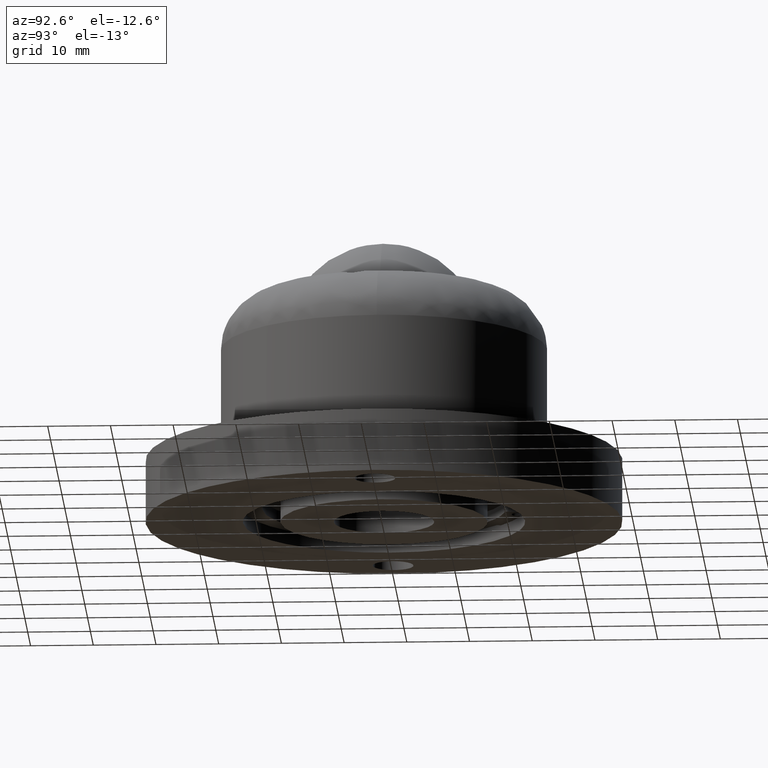
[diagram: clean part render]
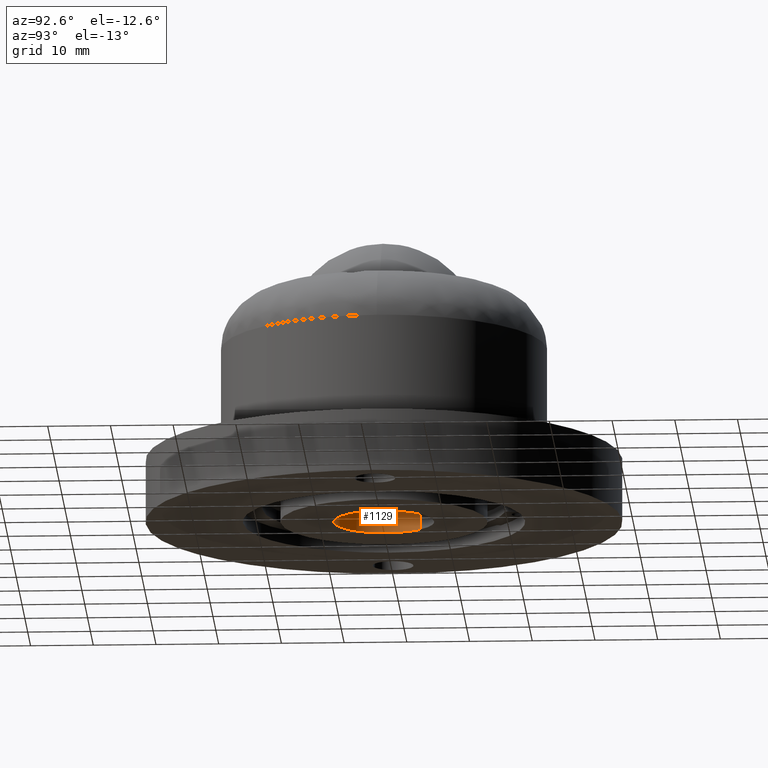
[diagram: same view with one face highlighted and labeled with its STEP entity id]
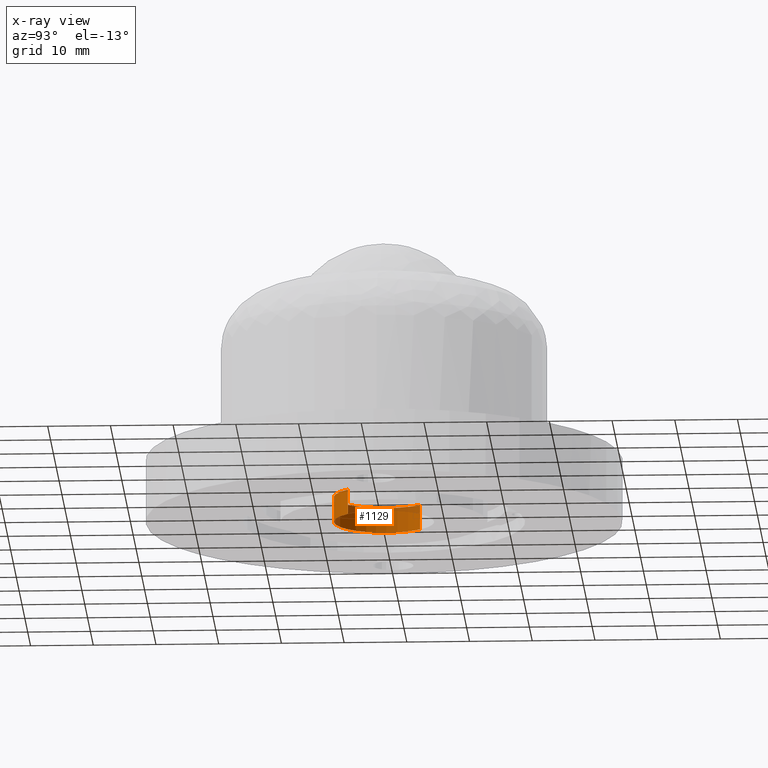
[diagram: x-ray of the same camera — body ghosted, the highlighted face saturated]
A machine part, auxiliary view. The second image highlights one B-rep face of the part: STEP entity #1129.
The next image is the same camera in x-ray: the body ghosted, the highlighted face saturated — about 16% of this face is hidden behind the body in this view.
In plain terms, the highlighted face is a freeform B-spline surface patch.
Its self-contained STEP definition (entity closure, byte-faithful):
#973=CARTESIAN_POINT('',(5.802994763858629,-5.506836414269235,3.999999999999981));
#974=VERTEX_POINT('',#973);
#985=CARTESIAN_POINT('',(-0.000001120812941,-7.999999999999921,4.0));
#986=VERTEX_POINT('',#985);
#987=CARTESIAN_POINT('',(5.802994763858629,-5.506836414269235,3.999999999999981));
#988=CARTESIAN_POINT('',(5.477137232008750,-5.850266327457732,3.999999999999989));
#989=CARTESIAN_POINT('',(4.738757038704434,-6.501481720285883,3.999999999999969));
#990=CARTESIAN_POINT('',(3.310285246142272,-7.355939909061124,4.000000000000014));
#991=CARTESIAN_POINT('',(1.690801295882577,-7.887177401995970,3.999999999999959));
#992=CARTESIAN_POINT('',(0.507231013489466,-8.000033579531856,3.999999999999995));
#993=CARTESIAN_POINT('',(-0.000001120812941,-7.999999999999921,4.0));
#994=B_SPLINE_CURVE_WITH_KNOTS('',3,(#987,#988,#989,#990,#991,#992,#993),.UNSPECIFIED.,.F.,.U.,(4,1,1,1,4),(0.000000017988243,1.420270991674795,2.942006078292971,4.970950394773506,6.492669322275529),.UNSPECIFIED.);
#995=EDGE_CURVE('',#974,#986,#994,.T.);
#997=CARTESIAN_POINT('',(-8.0,0.0,4.0));
#998=VERTEX_POINT('',#997);
#999=CARTESIAN_POINT('',(-0.000001120812941,-7.999999999999921,4.0));
#1000=CARTESIAN_POINT('',(-0.654518476255101,-8.000182052564831,3.999999999999994));
#1001=CARTESIAN_POINT('',(-1.537994714640798,-7.890939955597238,4.000000000000004));
#1002=CARTESIAN_POINT('',(-2.856919862615337,-7.499677240616364,3.999999999999998));
#1003=CARTESIAN_POINT('',(-3.845672192749862,-7.054117463501499,4.000000000000003));
#1004=CARTESIAN_POINT('',(-4.831449319856546,-6.404096796901970,3.999999999999998));
#1005=CARTESIAN_POINT('',(-5.700383095243077,-5.654583433136910,4.000000000000011));
#1006=CARTESIAN_POINT('',(-6.537090005378576,-4.684629713777211,3.999999999999981));
#1007=CARTESIAN_POINT('',(-7.339857226668991,-3.326679616297101,4.000000000000020));
#1008=CARTESIAN_POINT('',(-7.876679321009408,-1.734411459957983,4.000000000000025));
#1009=CARTESIAN_POINT('',(-8.000069322733799,-0.556320911823638,3.999999999999953));
#1010=CARTESIAN_POINT('',(-8.0,0.0,4.0));
#1011=B_SPLINE_CURVE_WITH_KNOTS('',3,(#999,#1000,#1001,#1002,#1003,#1004,#1005,#1006,#1007,#1008,#1009,#1010),.UNSPECIFIED.,.F.,.U.,(4,1,1,1,1,1,1,1,1,4),(0.000000073301889,1.963491644135711,2.650729434589671,4.123378835733814,5.203317042655385,6.185069672531616,7.559494516794923,9.032131331267143,10.897480669711850,12.566448831289900),.UNSPECIFIED.);
#1012=EDGE_CURVE('',#986,#998,#1011,.T.);
#1014=CARTESIAN_POINT('',(-5.802994763858592,5.506836414269200,3.999999999999981));
#1015=VERTEX_POINT('',#1014);
#1016=CARTESIAN_POINT('',(-8.0,0.0,4.0));
#1017=CARTESIAN_POINT('',(-8.000246116140669,0.727608695237839,3.999999999999993));
#1018=CARTESIAN_POINT('',(-7.821796380078336,2.024471584762638,4.0));
#1019=CARTESIAN_POINT('',(-7.067295231435942,3.915669547806408,3.999999999999975));
#1020=CARTESIAN_POINT('',(-6.304027671846884,4.979221943711218,3.999999999999998));
#1021=CARTESIAN_POINT('',(-5.802994763858592,5.506836414269200,3.999999999999981));
#1022=B_SPLINE_CURVE_WITH_KNOTS('',3,(#1016,#1017,#1018,#1019,#1020,#1021),.UNSPECIFIED.,.F.,.U.,(4,1,1,4),(0.000000019633642,2.182772845643265,3.891008478496778,6.073781304491226),.UNSPECIFIED.);
#1023=EDGE_CURVE('',#998,#1015,#1022,.T.);
#1054=CARTESIAN_POINT('',(5.802994968098299,-5.506836605550030,4.100000000000000));
#1055=CARTESIAN_POINT('',(0.296158362548269,-11.309831573648330,4.100000000000000));
#1056=CARTESIAN_POINT('',(-5.506836605550030,-5.802994968098299,4.100000000000000));
#1057=CARTESIAN_POINT('',(-11.309831573648330,-0.296158362548269,4.100000000000000));
#1058=CARTESIAN_POINT('',(-5.802994968098299,5.506836605550030,4.100000000000000));
#1059=CARTESIAN_POINT('',(5.802994968098299,-5.506836605550030,-0.102500000000000));
#1060=CARTESIAN_POINT('',(0.296158362548269,-11.309831573648330,-0.102500000000000));
#1061=CARTESIAN_POINT('',(-5.506836605550030,-5.802994968098299,-0.102500000000000));
#1062=CARTESIAN_POINT('',(-11.309831573648330,-0.296158362548269,-0.102500000000000));
#1063=CARTESIAN_POINT('',(-5.802994968098299,5.506836605550030,-0.102500000000000));
#1071=(BOUNDED_SURFACE()B_SPLINE_SURFACE(2,1,((#1054,#1059),(#1055,#1060),(#1056,#1061),(#1057,#1062),(#1058,#1063)),.UNSPECIFIED.,.F.,.F.,.U.)B_SPLINE_SURFACE_WITH_KNOTS((3,2,3),(2,2),(0.0,13.254833995939039,26.509667991878079),(0.0,4.202500000000000),.UNSPECIFIED.)GEOMETRIC_REPRESENTATION_ITEM()RATIONAL_B_SPLINE_SURFACE(((1.0,1.0),(0.707106781186548,0.707106781186548),(1.0,1.0),(0.707106781186548,0.707106781186548),(1.0,1.0)))REPRESENTATION_ITEM('')SURFACE());
#1072=ORIENTED_EDGE('',*,*,#995,.F.);
#1073=CARTESIAN_POINT('',(5.802994763858694,-5.506836414269168,-2.081668E-016));
#1074=VERTEX_POINT('',#1073);
#1075=CARTESIAN_POINT('',(5.802994763858629,-5.506836414269235,3.999999999999981));
#1076=CARTESIAN_POINT('',(5.802994763858694,-5.506836414269168,-2.081668E-016));
#1077=QUASI_UNIFORM_CURVE('',1,(#1075,#1076),.UNSPECIFIED.,.F.,.U.);
#1078=EDGE_CURVE('',#974,#1074,#1077,.T.);
#1079=ORIENTED_EDGE('',*,*,#1078,.T.);
#1080=CARTESIAN_POINT('',(-0.000001120812941,-7.999999999999921,0.0));
#1081=VERTEX_POINT('',#1080);
#1082=CARTESIAN_POINT('',(5.802994763858694,-5.506836414269168,-2.081668E-016));
#1083=CARTESIAN_POINT('',(5.430612784288418,-5.899362885285053,-1.948086E-016));
#1084=CARTESIAN_POINT('',(4.786183640418199,-6.453234941667851,-1.716915E-016));
#1085=CARTESIAN_POINT('',(3.661147618380980,-7.145520179966629,-1.313338E-016));
#1086=CARTESIAN_POINT('',(2.631817303710438,-7.587765410495318,-9.440939E-017));
#1087=CARTESIAN_POINT('',(1.352609987874829,-7.919308405079390,-4.852128E-017));
#1088=CARTESIAN_POINT('',(0.507239205742772,-8.000061931700012,-1.819588E-017));
#1089=CARTESIAN_POINT('',(-0.000001120812941,-7.999999999999921,0.0));
#1090=B_SPLINE_CURVE_WITH_KNOTS('',3,(#1082,#1083,#1084,#1085,#1086,#1087,#1088,#1089),.UNSPECIFIED.,.F.,.U.,(4,1,1,1,1,4),(0.000000017987539,1.623167475743361,2.536206653505806,3.956464625408438,4.970950394773372,6.492669322275639),.UNSPECIFIED.);
#1091=EDGE_CURVE('',#1074,#1081,#1090,.T.);
#1092=ORIENTED_EDGE('',*,*,#1091,.T.);
#1093=CARTESIAN_POINT('',(-8.0,0.0,0.0));
#1094=VERTEX_POINT('',#1093);
#1095=CARTESIAN_POINT('',(-0.000001120812941,-7.999999999999921,0.0));
#1096=CARTESIAN_POINT('',(-0.654514963954657,-8.000181454411189,0.0));
#1097=CARTESIAN_POINT('',(-1.668894319824046,-7.874768530952228,0.0));
#1098=CARTESIAN_POINT('',(-2.979563915018440,-7.450627908911025,0.0));
#1099=CARTESIAN_POINT('',(-4.191766802324122,-6.868304614727063,0.0));
#1100=CARTESIAN_POINT('',(-5.308262839295803,-6.050832807724878,0.0));
#1101=CARTESIAN_POINT('',(-6.424884461103707,-4.848708697843091,0.0));
#1102=CARTESIAN_POINT('',(-7.297817683727915,-3.451613190444045,0.0));
#1103=CARTESIAN_POINT('',(-7.876664904757265,-1.734406022244413,0.0));
#1104=CARTESIAN_POINT('',(-8.000070894587005,-0.556320909908789,0.0));
#1105=CARTESIAN_POINT('',(-8.0,0.0,0.0));
#1106=B_SPLINE_CURVE_WITH_KNOTS('',3,(#1095,#1096,#1097,#1098,#1099,#1100,#1101,#1102,#1103,#1104,#1105),.UNSPECIFIED.,.F.,.U.,(4,1,1,1,1,1,1,1,4),(0.000000073301889,1.963491644135711,3.043435574049173,4.123378835733814,5.988735998444220,7.166772433856919,9.032131331267143,10.897480669711850,12.566448831289900),.UNSPECIFIED.);
#1107=EDGE_CURVE('',#1081,#1094,#1106,.T.);
#1108=ORIENTED_EDGE('',*,*,#1107,.T.);
#1109=CARTESIAN_POINT('',(-5.802994763858656,5.506836414269134,-4.440892E-016));
#1110=VERTEX_POINT('',#1109);
#1111=CARTESIAN_POINT('',(-8.0,0.0,0.0));
#1112=CARTESIAN_POINT('',(-8.000223956171370,0.727604887009276,-5.867643E-017));
#1113=CARTESIAN_POINT('',(-7.821821799210348,2.024477459775987,-1.632605E-016));
#1114=CARTESIAN_POINT('',(-7.067284023996884,3.915665649890772,-3.157720E-016));
#1115=CARTESIAN_POINT('',(-6.304030644982232,4.979223330699723,-4.015408E-016));
#1116=CARTESIAN_POINT('',(-5.802994763858656,5.506836414269134,-4.440892E-016));
#1117=B_SPLINE_CURVE_WITH_KNOTS('',3,(#1111,#1112,#1113,#1114,#1115,#1116),.UNSPECIFIED.,.F.,.U.,(4,1,1,4),(0.000000019633508,2.182772845643178,3.891008478496729,6.073781304491130),.UNSPECIFIED.);
#1118=EDGE_CURVE('',#1094,#1110,#1117,.T.);
#1119=ORIENTED_EDGE('',*,*,#1118,.T.);
#1120=CARTESIAN_POINT('',(-5.802994763858592,5.506836414269200,3.999999999999981));
#1121=CARTESIAN_POINT('',(-5.802994763858656,5.506836414269134,-4.440892E-016));
#1122=QUASI_UNIFORM_CURVE('',1,(#1120,#1121),.UNSPECIFIED.,.F.,.U.);
#1123=EDGE_CURVE('',#1015,#1110,#1122,.T.);
#1124=ORIENTED_EDGE('',*,*,#1123,.F.);
#1125=ORIENTED_EDGE('',*,*,#1023,.F.);
#1126=ORIENTED_EDGE('',*,*,#1012,.F.);
#1127=EDGE_LOOP('',(#1072,#1079,#1092,#1108,#1119,#1124,#1125,#1126));
#1128=FACE_OUTER_BOUND('',#1127,.T.);
#1129=ADVANCED_FACE('',(#1128),#1071,.F.);